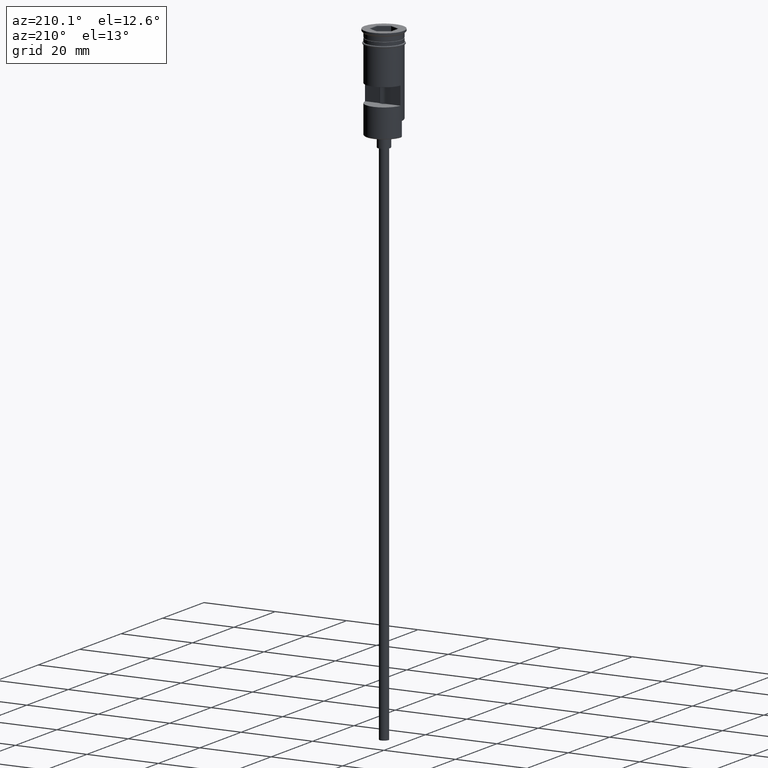
[diagram: clean part render]
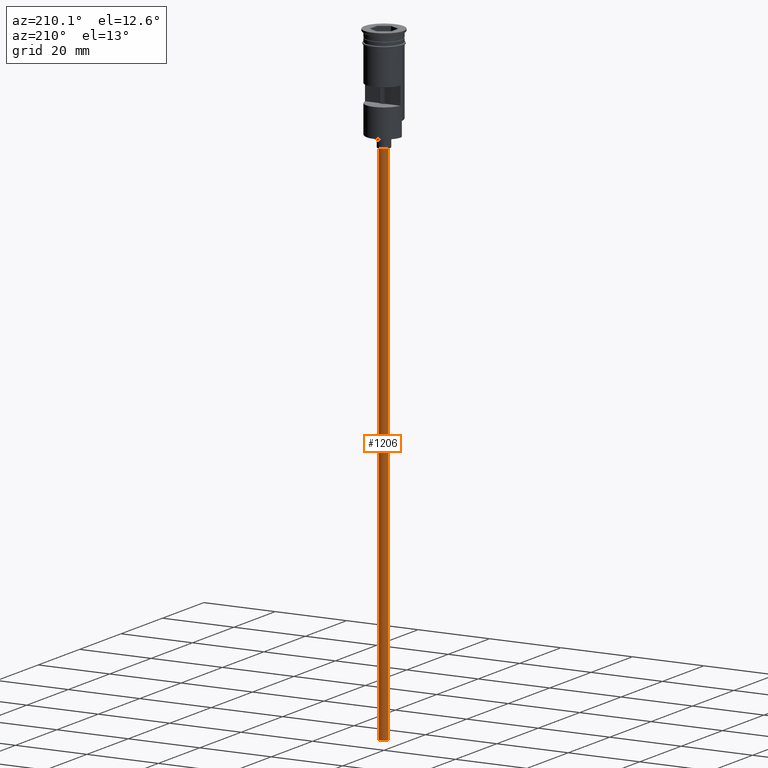
[diagram: same view with one face highlighted and labeled with its STEP entity id]
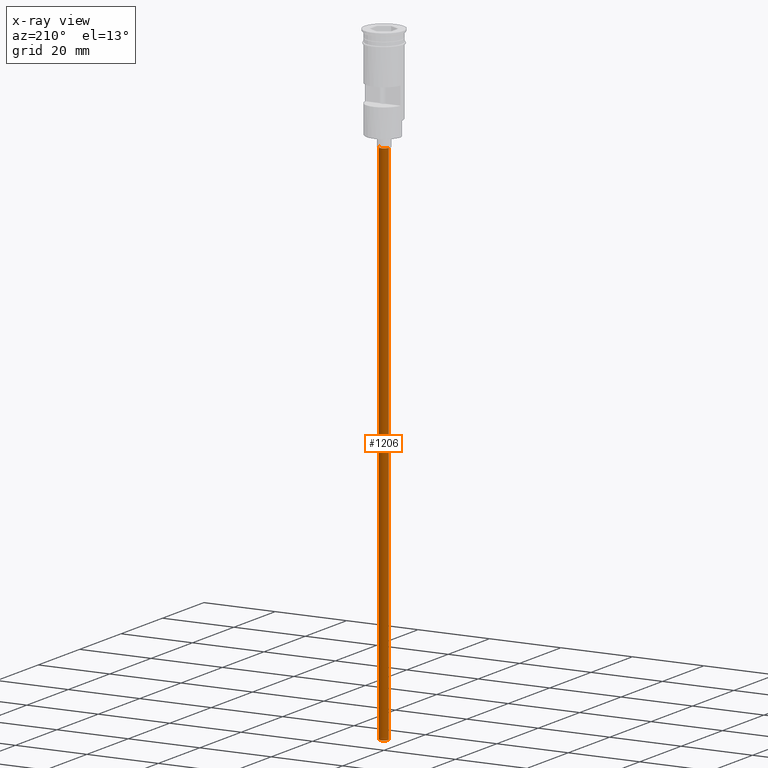
[diagram: x-ray of the same camera — body ghosted, the highlighted face saturated]
A machine part, auxiliary view. The second image highlights one B-rep face of the part: STEP entity #1206.
The next image is the same camera in x-ray: the body ghosted, the highlighted face saturated — about 0% of this face is hidden behind the body in this view.
In plain terms, the highlighted cylindrical surface (edge-blend (fillet) strip) has radius 1.25 mm, axis along (-0, -0, 1).
Its self-contained STEP definition (entity closure, byte-faithful):
#37 = LINE ( 'NONE', #520, #525 ) ;
#156 = CIRCLE ( 'NONE', #878, 1.250000000000000000 ) ;
#182 = DIRECTION ( 'NONE',  ( -0.000000000000000000, -0.000000000000000000, 1.000000000000000000 ) ) ;
#214 = EDGE_LOOP ( 'NONE', ( #992, #1363, #327, #1382 ) ) ;
#215 = DIRECTION ( 'NONE',  ( 0.000000000000000000, 0.000000000000000000, -1.000000000000000000 ) ) ;
#258 = VERTEX_POINT ( 'NONE', #1111 ) ;
#327 = ORIENTED_EDGE ( 'NONE', *, *, #475, .T. ) ;
#383 = VERTEX_POINT ( 'NONE', #714 ) ;
#397 = AXIS2_PLACEMENT_3D ( 'NONE', #1542, #426, #896 ) ;
#426 = DIRECTION ( 'NONE',  ( 0.000000000000000000, 0.000000000000000000, -1.000000000000000000 ) ) ;
#452 = VERTEX_POINT ( 'NONE', #1299 ) ;
#453 = FACE_OUTER_BOUND ( 'NONE', #214, .T. ) ;
#468 = CARTESIAN_POINT ( 'NONE',  ( 0.000000000000000000, 0.000000000000000000, -29.50000000000000000 ) ) ;
#475 = EDGE_CURVE ( 'NONE', #765, #383, #156, .T. ) ;
#485 = AXIS2_PLACEMENT_3D ( 'NONE', #1541, #182, #939 ) ;
#520 = CARTESIAN_POINT ( 'NONE',  ( 1.250000000000000000, 0.000000000000000000, -176.5000000000000000 ) ) ;
#525 = VECTOR ( 'NONE', #661, 1000.000000000000000 ) ;
#596 = DIRECTION ( 'NONE',  ( -0.000000000000000000, -0.000000000000000000, 1.000000000000000000 ) ) ;
#661 = DIRECTION ( 'NONE',  ( -0.000000000000000000, -0.000000000000000000, 1.000000000000000000 ) ) ;
#677 = EDGE_CURVE ( 'NONE', #258, #383, #37, .T. ) ;
#678 = CYLINDRICAL_SURFACE ( 'NONE', #485, 1.250000000000000000 ) ;
#690 = EDGE_CURVE ( 'NONE', #452, #258, #1374, .T. ) ;
#708 = DIRECTION ( 'NONE',  ( -1.000000000000000000, 0.000000000000000000, 0.000000000000000000 ) ) ;
#714 = CARTESIAN_POINT ( 'NONE',  ( 1.250000000000000000, 0.000000000000000000, -29.50000000000000000 ) ) ;
#740 = LINE ( 'NONE', #1216, #1117 ) ;
#765 = VERTEX_POINT ( 'NONE', #919 ) ;
#878 = AXIS2_PLACEMENT_3D ( 'NONE', #468, #215, #708 ) ;
#896 = DIRECTION ( 'NONE',  ( -1.000000000000000000, 0.000000000000000000, 0.000000000000000000 ) ) ;
#919 = CARTESIAN_POINT ( 'NONE',  ( -1.250000000000000000, 1.530808498934191571E-16, -29.50000000000000000 ) ) ;
#939 = DIRECTION ( 'NONE',  ( 1.000000000000000000, 0.000000000000000000, 0.000000000000000000 ) ) ;
#992 = ORIENTED_EDGE ( 'NONE', *, *, #690, .F. ) ;
#1111 = CARTESIAN_POINT ( 'NONE',  ( 1.250000000000000000, 0.000000000000000000, -176.5000000000000000 ) ) ;
#1117 = VECTOR ( 'NONE', #596, 1000.000000000000000 ) ;
#1206 = ADVANCED_FACE ( 'NONE', ( #453 ), #678, .T. ) ;
#1216 = CARTESIAN_POINT ( 'NONE',  ( -1.250000000000000000, 1.530808498934191571E-16, -176.5000000000000000 ) ) ;
#1299 = CARTESIAN_POINT ( 'NONE',  ( -1.250000000000000000, 1.530808498934191571E-16, -176.5000000000000000 ) ) ;
#1363 = ORIENTED_EDGE ( 'NONE', *, *, #1378, .T. ) ;
#1374 = CIRCLE ( 'NONE', #397, 1.250000000000000000 ) ;
#1378 = EDGE_CURVE ( 'NONE', #452, #765, #740, .T. ) ;
#1382 = ORIENTED_EDGE ( 'NONE', *, *, #677, .F. ) ;
#1541 = CARTESIAN_POINT ( 'NONE',  ( 0.000000000000000000, 0.000000000000000000, -176.5000000000000000 ) ) ;
#1542 = CARTESIAN_POINT ( 'NONE',  ( 0.000000000000000000, 0.000000000000000000, -176.5000000000000000 ) ) ;